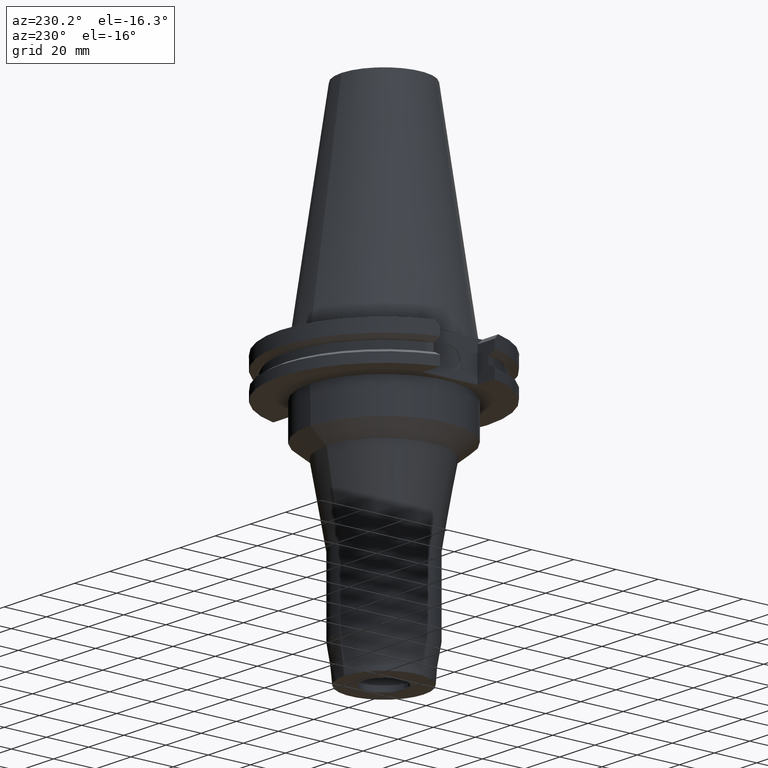
[diagram: clean part render]
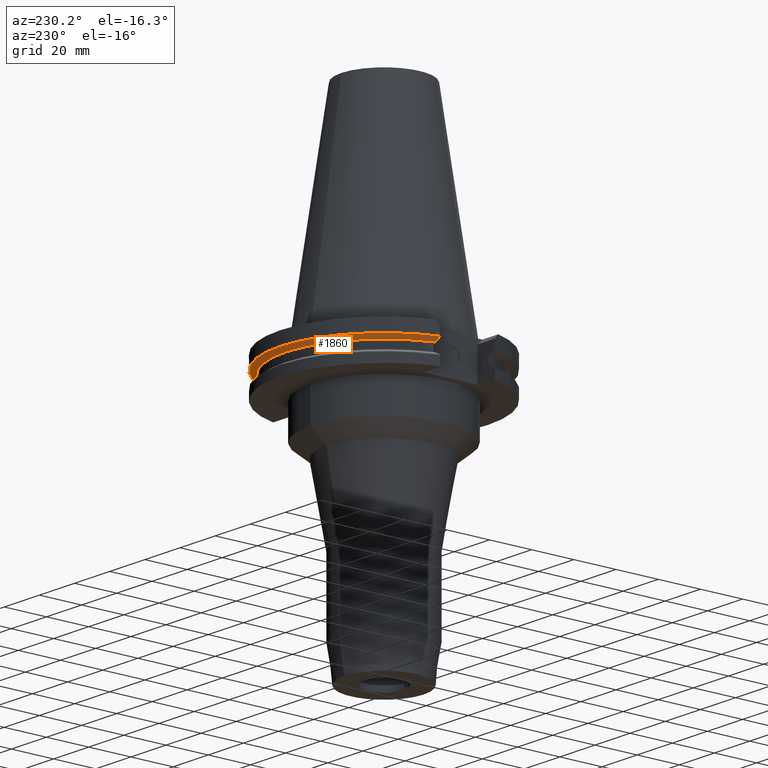
[diagram: same view with one face highlighted and labeled with its STEP entity id]
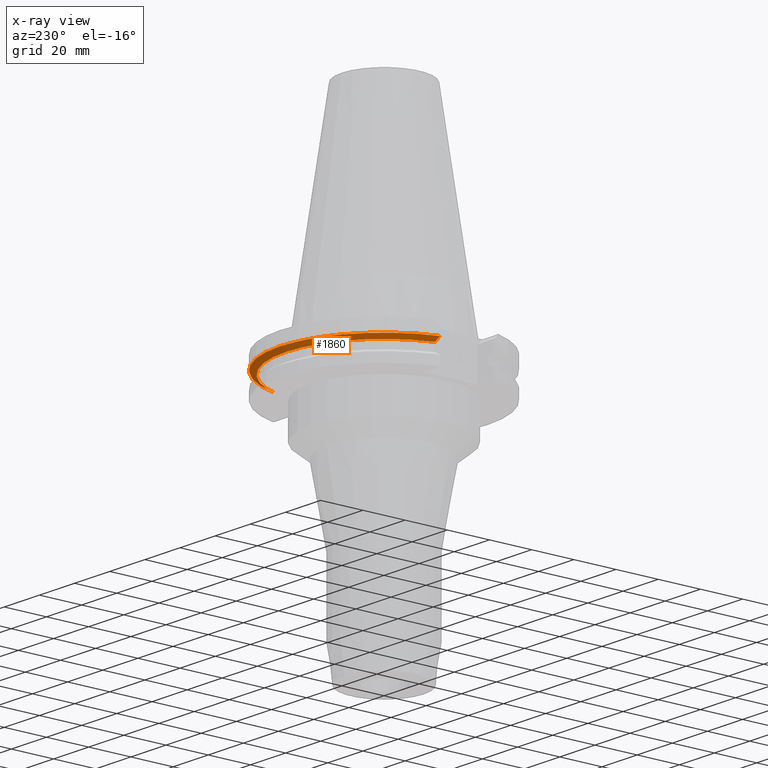
[diagram: x-ray of the same camera — body ghosted, the highlighted face saturated]
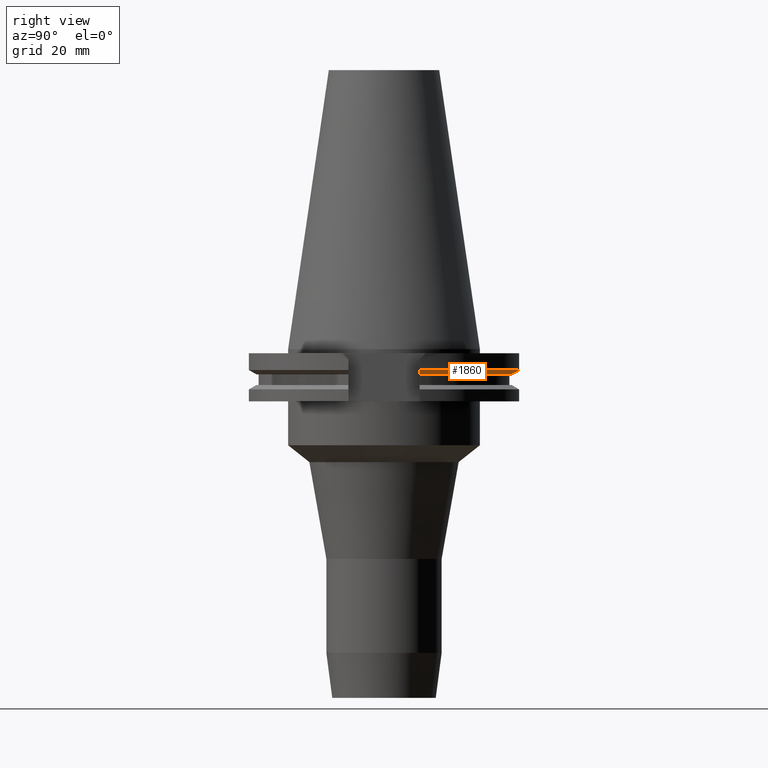
[diagram: same view with one face highlighted and labeled with its STEP entity id]
A machine part, auxiliary view. The second image highlights one B-rep face of the part: STEP entity #1860.
The next image is the same camera in x-ray: the body ghosted, the highlighted face saturated — about 2% of this face is hidden behind the body in this view.
A second angle (right view) of the same face is appended — the face is thin or edge-on in the first view.
In plain terms, the highlighted conical surface has half-angle 60 deg.
Its self-contained STEP definition (entity closure, byte-faithful):
#461=CARTESIAN_POINT('',(0.E0,0.E0,-9.207500000003E0));
#462=DIRECTION('',(0.E0,0.E0,1.E0));
#463=DIRECTION('',(9.602855947900E-1,2.790189535476E-1,0.E0));
#464=AXIS2_PLACEMENT_3D('',#461,#462,#463);
#469=CARTESIAN_POINT('',(0.E0,0.E0,-9.207500000003E0));
#470=DIRECTION('',(0.E0,0.E0,1.E0));
#471=DIRECTION('',(0.E0,1.E0,0.E0));
#472=AXIS2_PLACEMENT_3D('',#469,#470,#471);
#493=CARTESIAN_POINT('',(4.458657636813E1,1.2955E1,-9.207500000001E0));
#494=CARTESIAN_POINT('',(4.490806163993E1,1.2955E1,-9.029261766981E0));
#495=CARTESIAN_POINT('',(4.555077636711E1,1.2955E1,-8.672605903566E0));
#496=CARTESIAN_POINT('',(4.651414584907E1,1.2955E1,-8.137199213206E0));
#497=CARTESIAN_POINT('',(4.715593427837E1,1.2955E1,-7.780001752702E0));
#498=CARTESIAN_POINT('',(4.747671146204E1,1.2955E1,-7.601333230925E0));
#503=CARTESIAN_POINT('',(0.E0,0.E0,-7.601333230926E0));
#504=DIRECTION('',(0.E0,0.E0,1.E0));
#505=DIRECTION('',(9.647287063661E-1,2.632461264923E-1,0.E0));
#506=AXIS2_PLACEMENT_3D('',#503,#504,#505);
#511=CARTESIAN_POINT('',(0.E0,0.E0,-7.601333230926E0));
#512=DIRECTION('',(0.E0,0.E0,1.E0));
#513=DIRECTION('',(0.E0,1.E0,0.E0));
#514=AXIS2_PLACEMENT_3D('',#511,#512,#513);
#519=CARTESIAN_POINT('',(-4.747671146204E1,1.2955E1,-7.601333230925E0));
#520=CARTESIAN_POINT('',(-4.715593427836E1,1.2955E1,-7.780001752709E0));
#521=CARTESIAN_POINT('',(-4.651414584905E1,1.2955E1,-8.137199213222E0));
#522=CARTESIAN_POINT('',(-4.555077636708E1,1.2955E1,-8.672605903582E0));
#523=CARTESIAN_POINT('',(-4.490806163991E1,1.2955E1,-9.029261766988E0));
#524=CARTESIAN_POINT('',(-4.458657636813E1,1.2955E1,-9.207500000001E0));
#1422=CARTESIAN_POINT('',(4.747671146204E1,1.2955E1,-7.601333230925E0));
#1423=VERTEX_POINT('',#1422);
#1424=VERTEX_POINT('',#493);
#1442=CARTESIAN_POINT('',(-4.747671146204E1,1.2955E1,-7.601333230925E0));
#1443=VERTEX_POINT('',#1442);
#1444=CARTESIAN_POINT('',(0.E0,4.92125E1,-7.601333230926E0));
#1445=VERTEX_POINT('',#1444);
#1483=CARTESIAN_POINT('',(-4.458657636813E1,1.2955E1,-9.207500000001E0));
#1484=VERTEX_POINT('',#1483);
#1499=CARTESIAN_POINT('',(0.E0,4.643053755053E1,-9.207500000003E0));
#1500=VERTEX_POINT('',#1499);
#1847=CARTESIAN_POINT('',(0.E0,0.E0,-8.404416615464E0));
#1848=DIRECTION('',(0.E0,0.E0,1.E0));
#1849=DIRECTION('',(0.E0,1.E0,0.E0));
#1850=AXIS2_PLACEMENT_3D('',#1847,#1848,#1849);
#1851=CONICAL_SURFACE('',#1850,4.782151877527E1,6.E1);
#1852=ORIENTED_EDGE('',*,*,#1658,.T.);
#1853=ORIENTED_EDGE('',*,*,#1701,.T.);
#1854=ORIENTED_EDGE('',*,*,#1699,.T.);
#1855=ORIENTED_EDGE('',*,*,#1759,.T.);
#1856=ORIENTED_EDGE('',*,*,#1839,.F.);
#1857=ORIENTED_EDGE('',*,*,#1837,.F.);
#1858=EDGE_LOOP('',(#1852,#1853,#1854,#1855,#1856,#1857));
#1859=FACE_OUTER_BOUND('',#1858,.F.);
#465=CIRCLE('',#464,4.643053755053E1);
#473=CIRCLE('',#472,4.643053755053E1);
#499=B_SPLINE_CURVE_WITH_KNOTS('',3,(#493,#494,#495,#496,#497,#498),
.UNSPECIFIED.,.F.,.F.,(4,1,1,4),(0.E0,3.333333333333E-1,6.666666666667E-1,1.E0),
.UNSPECIFIED.);
#507=CIRCLE('',#506,4.92125E1);
#515=CIRCLE('',#514,4.92125E1);
#525=B_SPLINE_CURVE_WITH_KNOTS('',3,(#519,#520,#521,#522,#523,#524),
.UNSPECIFIED.,.F.,.F.,(4,1,1,4),(0.E0,3.333333333333E-1,6.666666666667E-1,1.E0),
.UNSPECIFIED.);
#1658=EDGE_CURVE('',#1424,#1423,#499,.T.);
#1699=EDGE_CURVE('',#1445,#1443,#515,.T.);
#1701=EDGE_CURVE('',#1423,#1445,#507,.T.);
#1759=EDGE_CURVE('',#1443,#1484,#525,.T.);
#1837=EDGE_CURVE('',#1424,#1500,#465,.T.);
#1839=EDGE_CURVE('',#1500,#1484,#473,.T.);
#1860=ADVANCED_FACE('',(#1859),#1851,.T.);